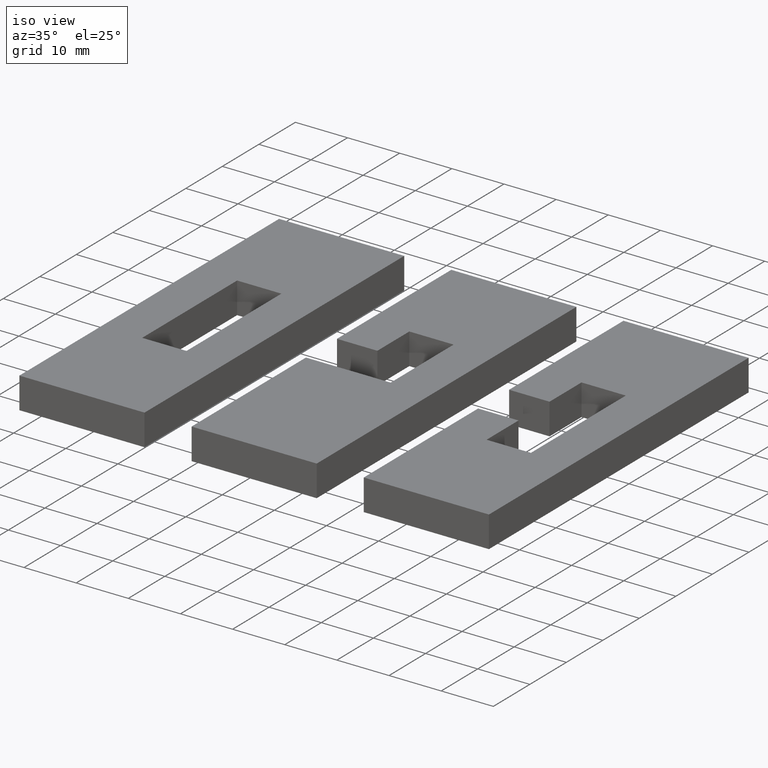
[diagram: clean part render]
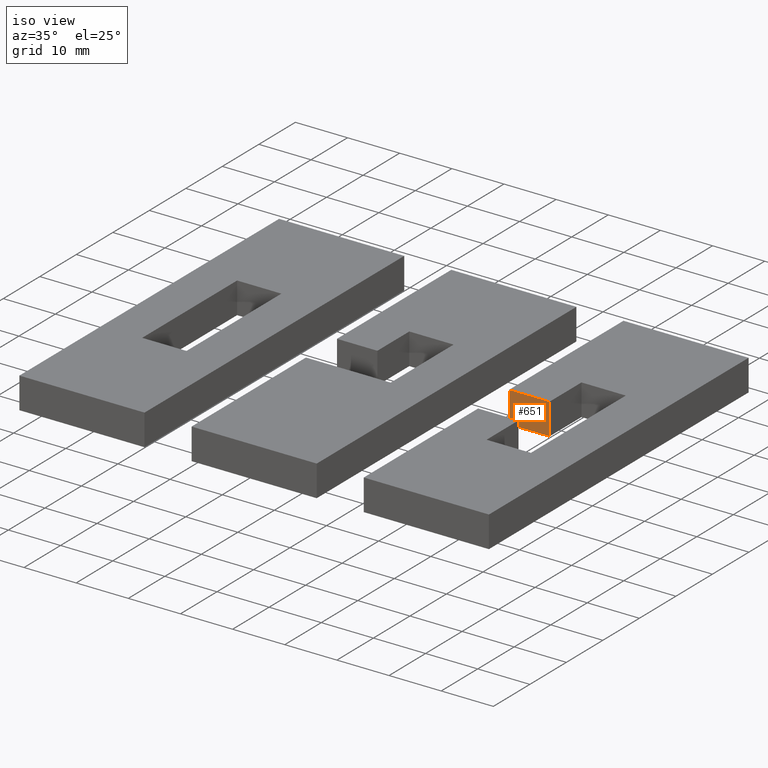
[diagram: same view with one face highlighted and labeled with its STEP entity id]
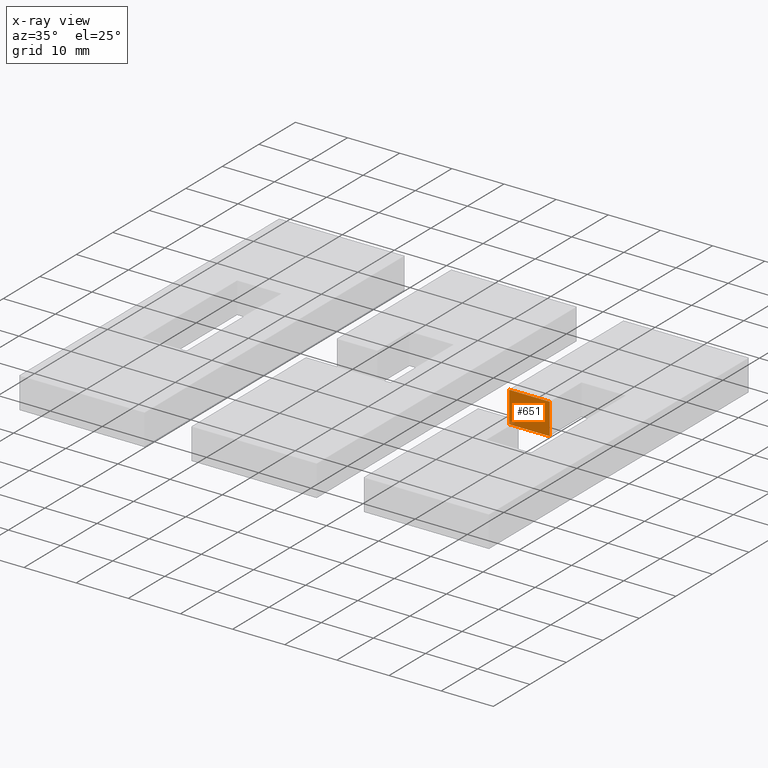
[diagram: x-ray of the same camera — body ghosted, the highlighted face saturated]
A machine part, iso view. The second image highlights one B-rep face of the part: STEP entity #651.
The next image is the same camera in x-ray: the body ghosted, the highlighted face saturated — about 2% of this face is hidden behind the body in this view.
In plain terms, the highlighted planar face has unit normal (0, 1, 0).
Its self-contained STEP definition (entity closure, byte-faithful):
#84=ORIENTED_EDGE('',*,*,#217,.F.);
#85=ORIENTED_EDGE('',*,*,#231,.T.);
#86=ORIENTED_EDGE('',*,*,#206,.T.);
#87=ORIENTED_EDGE('',*,*,#225,.F.);
#206=EDGE_CURVE('',#296,#295,#356,.T.);
#217=EDGE_CURVE('',#305,#306,#367,.T.);
#225=EDGE_CURVE('',#306,#295,#375,.T.);
#231=EDGE_CURVE('',#305,#296,#381,.T.);
#295=VERTEX_POINT('',#937);
#296=VERTEX_POINT('',#939);
#305=VERTEX_POINT('',#959);
#306=VERTEX_POINT('',#961);
#356=LINE('',#938,#446);
#367=LINE('',#960,#457);
#375=LINE('',#975,#465);
#381=LINE('',#988,#471);
#446=VECTOR('',#763,1.);
#457=VECTOR('',#776,1.);
#465=VECTOR('',#790,1.);
#471=VECTOR('',#810,1.);
#539=EDGE_LOOP('',(#84,#85,#86,#87));
#577=FACE_BOUND('',#539,.T.);
#615=PLANE('',#722);
#651=ADVANCED_FACE('',(#577),#615,.F.);
#722=AXIS2_PLACEMENT_3D('',#989,#811,#812);
#763=DIRECTION('',(-1.,0.,0.));
#776=DIRECTION('',(-1.,0.,0.));
#790=DIRECTION('',(0.,0.,1.));
#810=DIRECTION('',(0.,0.,1.));
#811=DIRECTION('',(0.,1.,0.));
#812=DIRECTION('',(0.,0.,1.));
#937=CARTESIAN_POINT('',(0.05404,0.00425,0.006));
#938=CARTESIAN_POINT('',(0.05754,0.00425,0.006));
#939=CARTESIAN_POINT('',(0.06179,0.00425,0.006));
#959=CARTESIAN_POINT('',(0.06179,0.00425,-6.93889390390723E-18));
#960=CARTESIAN_POINT('',(0.03302,0.00425,0.));
#961=CARTESIAN_POINT('',(0.05404,0.00425,0.));
#975=CARTESIAN_POINT('',(0.05404,0.00425,0.006));
#988=CARTESIAN_POINT('',(0.06179,0.00425,-0.0194));
#989=CARTESIAN_POINT('',(0.05754,0.00425,-0.0194));